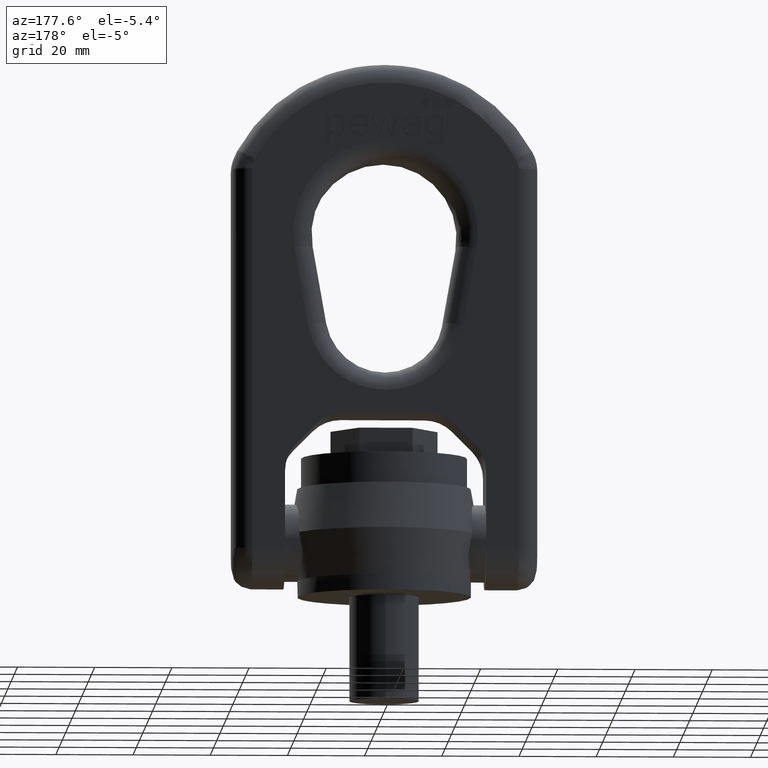
[diagram: clean part render]
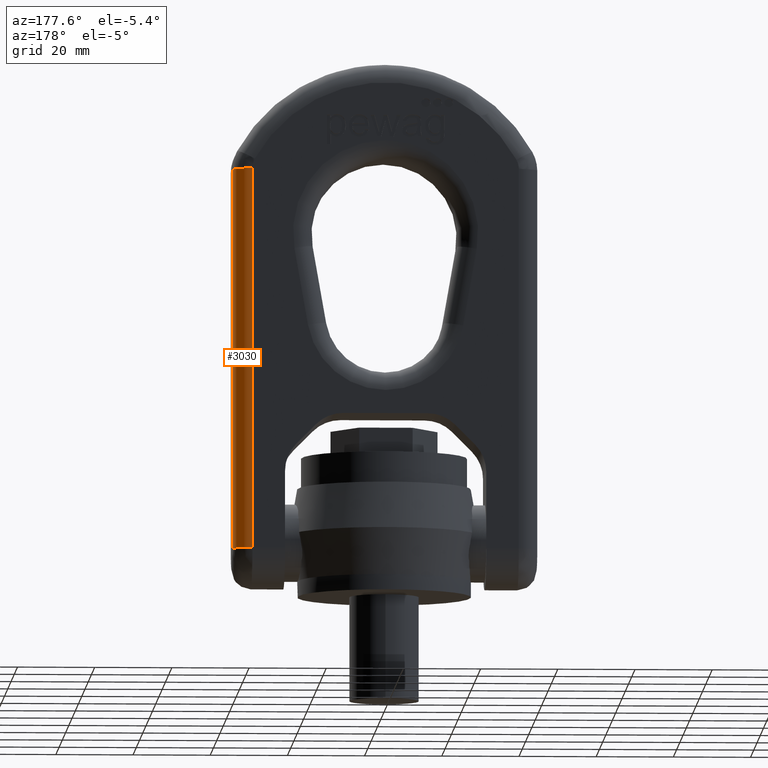
[diagram: same view with one face highlighted and labeled with its STEP entity id]
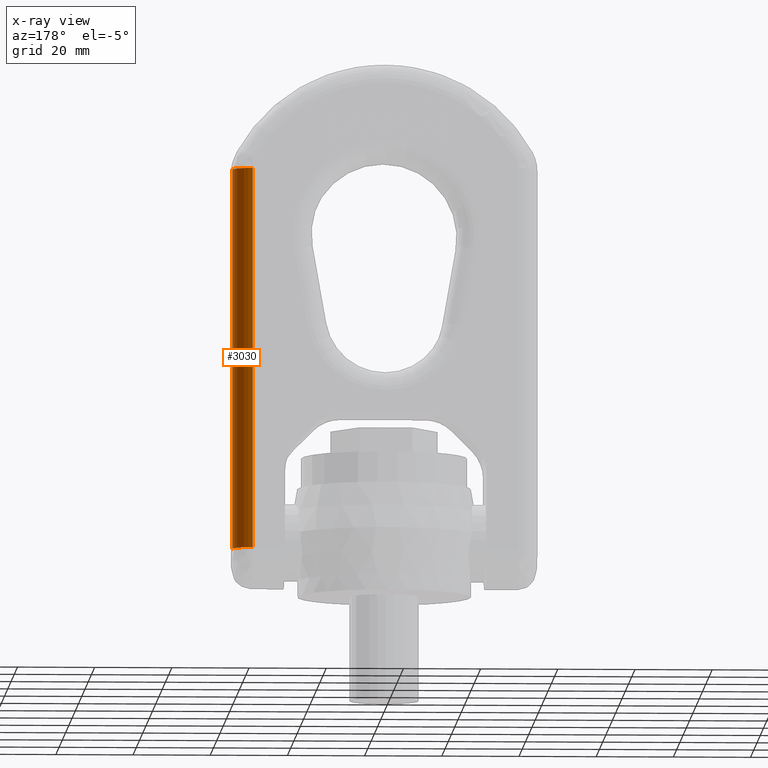
[diagram: x-ray of the same camera — body ghosted, the highlighted face saturated]
A machine part, auxiliary view. The second image highlights one B-rep face of the part: STEP entity #3030.
The next image is the same camera in x-ray: the body ghosted, the highlighted face saturated — about 0% of this face is hidden behind the body in this view.
In plain terms, the highlighted cylindrical surface (edge-blend (fillet) strip) has radius 5 mm, axis along (-0, 0, 1).
Its self-contained STEP definition (entity closure, byte-faithful):
#1817=LINE('',#7406,#2125);
#1867=LINE('',#7754,#2175);
#2125=VECTOR('',#6268,1.);
#2175=VECTOR('',#6354,1.);
#2655=FACE_OUTER_BOUND('',#3423,.T.);
#3030=ADVANCED_FACE('',(#2655),#3064,.T.);
#3064=CYLINDRICAL_SURFACE('',#6047,5.);
#3423=EDGE_LOOP('',(#4657,#4658,#4659,#4660));
#4657=ORIENTED_EDGE('',*,*,#5738,.T.);
#4658=ORIENTED_EDGE('',*,*,#5365,.F.);
#4659=ORIENTED_EDGE('',*,*,#5740,.F.);
#4660=ORIENTED_EDGE('',*,*,#5268,.F.);
#4741=VERTEX_POINT('',#7064);
#4832=VERTEX_POINT('',#7405);
#4924=VERTEX_POINT('',#7753);
#4925=VERTEX_POINT('',#7755);
#5268=EDGE_CURVE('',#4832,#4741,#1817,.T.);
#5365=EDGE_CURVE('',#4924,#4925,#1867,.T.);
#5738=EDGE_CURVE('',#4832,#4925,#5816,.T.);
#5740=EDGE_CURVE('',#4741,#4924,#5818,.T.);
#5816=CIRCLE('',#6043,5.);
#5818=CIRCLE('',#6046,5.);
#6043=AXIS2_PLACEMENT_3D('',#9792,#6894,#6895);
#6046=AXIS2_PLACEMENT_3D('',#9811,#6900,#6901);
#6047=AXIS2_PLACEMENT_3D('',#9812,#6902,#6903);
#6268=DIRECTION('',(1.87537673078574E-16,-4.39384026378438E-31,-1.));
#6354=DIRECTION('',(-1.87537673078574E-16,4.39384026378438E-31,1.));
#6894=DIRECTION('',(0.,0.,-1.));
#6895=DIRECTION('',(-1.,0.,0.));
#6900=DIRECTION('',(3.46944695195362E-16,-9.62964972193618E-31,-1.));
#6901=DIRECTION('',(-1.,0.,-3.46944695195361E-16));
#6902=DIRECTION('',(-1.87537673078574E-16,4.39384026378438E-31,1.));
#6903=DIRECTION('',(0.999999999999999,0.,0.));
#7064=CARTESIAN_POINT('',(34.5,9.99999999999992,12.));
#7405=CARTESIAN_POINT('',(34.5,9.99999999999992,110.597669259971));
#7406=CARTESIAN_POINT('',(34.5,9.99999999999992,12.));
#7753=CARTESIAN_POINT('',(39.5,4.99999999999991,12.));
#7754=CARTESIAN_POINT('',(39.5,4.99999999999992,110.597669259971));
#7755=CARTESIAN_POINT('',(39.5,4.99999999999992,110.597669259971));
#9792=CARTESIAN_POINT('',(34.5,4.99999999999992,110.597669259971));
#9811=CARTESIAN_POINT('',(34.5,4.99999999999992,12.));
#9812=CARTESIAN_POINT('',(34.5,4.99999999999992,94.295));